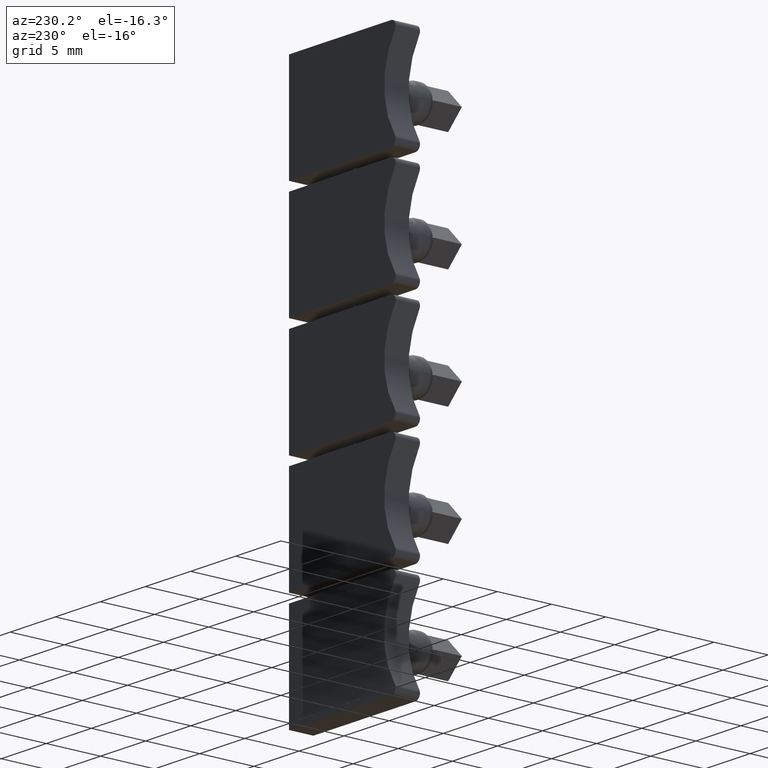
[diagram: clean part render]
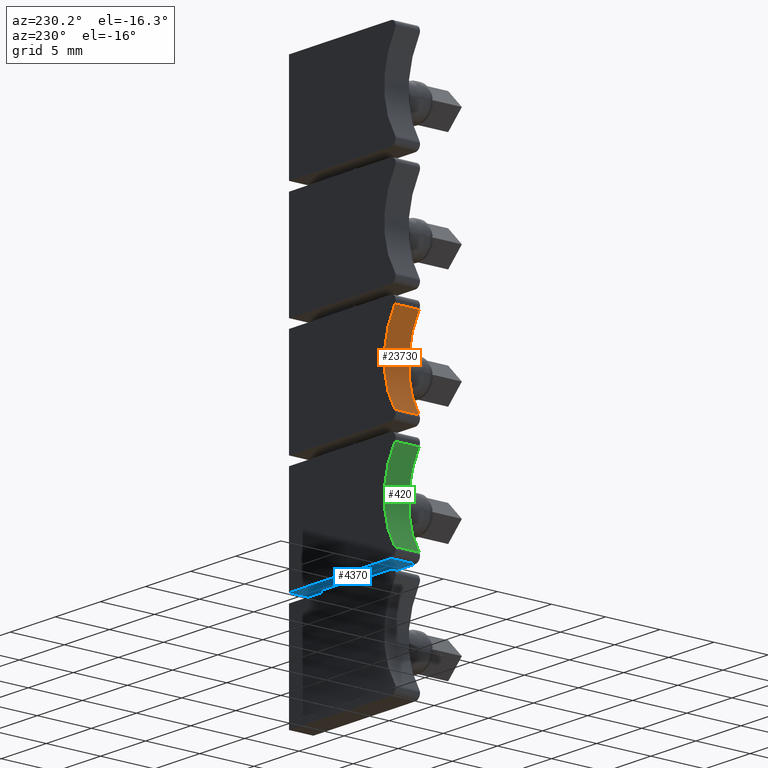
[diagram: same view with three faces highlighted in distinct colors, each labeled with its STEP entity id]
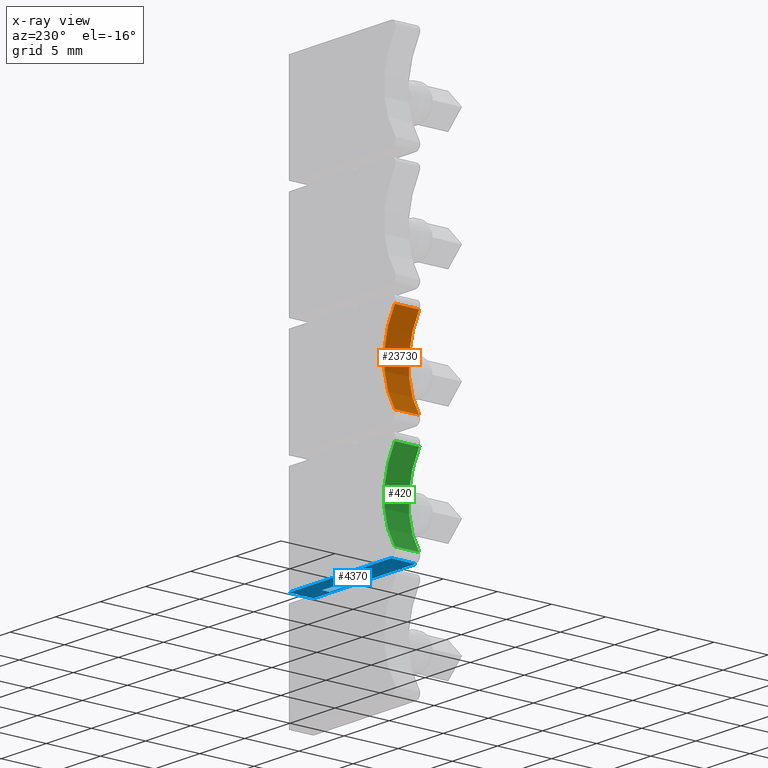
[diagram: x-ray of the same camera — body ghosted, the three highlighted faces saturated]
A machine part, auxiliary view with three faces highlighted in distinct colors.
The next image is the same camera in x-ray (body ghosted, the three faces saturated) — at least one of them is partly hidden behind the body in this view.
Their STEP definitions:

[orange] entity #23730 — the highlighted cylindrical surface (partial cylindrical patch) has radius 7 mm, axis along (0, 1, -0).
#23320=CARTESIAN_POINT('',(-24.7719648438414,35.7630743806125,35.45));
#23330=DIRECTION('',(4.37360856649983E-12,1.,0.));
#23340=DIRECTION('',(-1.,4.37360856649983E-12,0.));
#23350=AXIS2_PLACEMENT_3D('',#23320,#23330,#23340);
#23360=CYLINDRICAL_SURFACE('',#23350,6.99999999891299);
#23370=CARTESIAN_POINT('',(-18.9568131782551,35.7630743805871,
39.3466666640875));
#23380=DIRECTION('',(4.37360856649983E-12,1.,0.));
#23390=VECTOR('',#23380,1.);
#23400=LINE('',#23370,#23390);
#23410=CARTESIAN_POINT('',(-18.9568131782243,42.8120767804526,
39.3466666640875));
#23420=VERTEX_POINT('',#23410);
#23430=CARTESIAN_POINT('',(-18.9568131782144,45.0620767804526,
39.3466666640875));
#23440=VERTEX_POINT('',#23430);
#23450=EDGE_CURVE('',#23420,#23440,#23400,.T.);
#23460=ORIENTED_EDGE('',*,*,#23450,.T.);
#23470=CARTESIAN_POINT('',(-24.7719648438106,42.812076780478,35.45));
#23480=DIRECTION('',(4.37360856649983E-12,1.,0.));
#23490=DIRECTION('',(-1.,4.37360856649983E-12,0.));
#23500=AXIS2_PLACEMENT_3D('',#23470,#23480,#23490);
#23510=CIRCLE('',#23500,6.99999999891299);
#23520=CARTESIAN_POINT('',(-18.9568131816267,42.8120767804526,
31.5533333308349));
#23530=VERTEX_POINT('',#23520);
#23540=EDGE_CURVE('',#23420,#23530,#23510,.T.);
#23550=ORIENTED_EDGE('',*,*,#23540,.F.);
#23560=CARTESIAN_POINT('',(-18.9568131816576,35.7630743805871,
31.5533333308349));
#23570=DIRECTION('',(4.37360856649983E-12,1.,0.));
#23580=VECTOR('',#23570,1.);
#23590=LINE('',#23560,#23580);
#23600=CARTESIAN_POINT('',(-18.9568131816169,45.0620767804526,
31.5533333308349));
#23610=VERTEX_POINT('',#23600);
#23620=EDGE_CURVE('',#23530,#23610,#23590,.T.);
#23630=ORIENTED_EDGE('',*,*,#23620,.F.);
#23640=CARTESIAN_POINT('',(-24.7719648438007,45.062076780478,35.45));
#23650=DIRECTION('',(4.37360856649983E-12,1.,0.));
#23660=DIRECTION('',(-1.,4.37360856649983E-12,0.));
#23670=AXIS2_PLACEMENT_3D('',#23640,#23650,#23660);
#23680=CIRCLE('',#23670,6.99999999891299);
#23690=EDGE_CURVE('',#23440,#23610,#23680,.T.);
#23700=ORIENTED_EDGE('',*,*,#23690,.T.);
#23710=EDGE_LOOP('',(#23700,#23630,#23550,#23460));
#23720=FACE_OUTER_BOUND('',#23710,.T.);
#23730=ADVANCED_FACE('',(#23720),#23360,.F.);

[blue] entity #4370 — the highlighted planar face has unit normal (0, -0, -1).
#3640=CARTESIAN_POINT('',(-9.02416052900085,42.8120767804091,
20.6249999972799));
#3650=DIRECTION('',(0.,-0.,-1.));
#3660=DIRECTION('',(1.,-4.37360856649983E-12,0.));
#3670=AXIS2_PLACEMENT_3D('',#3640,#3650,#3660);
#3680=PLANE('',#3670);
#3690=CARTESIAN_POINT('',(-9.22161674200213,42.81207678041,
20.6249999972799));
#3700=DIRECTION('',(-4.37360856649983E-12,-1.,0.));
#3710=VECTOR('',#3700,1.);
#3720=LINE('',#3690,#3710);
#3730=CARTESIAN_POINT('',(-9.22161674199827,43.6954101153219,
20.6249999972799));
#3740=VERTEX_POINT('',#3730);
#3750=CARTESIAN_POINT('',(-9.2216167420014,42.9787434470685,
20.6249999972799));
#3760=VERTEX_POINT('',#3750);
#3770=EDGE_CURVE('',#3740,#3760,#3720,.T.);
#3780=ORIENTED_EDGE('',*,*,#3770,.F.);
#3790=CARTESIAN_POINT('',(-18.2837265971482,42.9787434471081,
20.6249999972799));
#3800=DIRECTION('',(1.,-4.37360856649983E-12,0.));
#3810=VECTOR('',#3800,1.);
#3820=LINE('',#3790,#3810);
#3830=CARTESIAN_POINT('',(-12.7216167420021,42.9787434470838,
20.6249999972799));
#3840=VERTEX_POINT('',#3830);
#3850=EDGE_CURVE('',#3840,#3760,#3820,.T.);
#3860=ORIENTED_EDGE('',*,*,#3850,.T.);
#3870=CARTESIAN_POINT('',(-12.7216167420029,42.8120767804253,
20.6249999972799));
#3880=DIRECTION('',(-4.37360856649983E-12,-1.,0.));
#3890=VECTOR('',#3880,1.);
#3900=LINE('',#3870,#3890);
#3910=CARTESIAN_POINT('',(-12.721616741999,43.6954101153372,
20.6249999972799));
#3920=VERTEX_POINT('',#3910);
#3930=EDGE_CURVE('',#3920,#3840,#3900,.T.);
#3940=ORIENTED_EDGE('',*,*,#3930,.T.);
#3950=CARTESIAN_POINT('',(-18.2837265971451,43.6954101153616,
20.6249999972799));
#3960=DIRECTION('',(-1.,4.37360856649983E-12,0.));
#3970=VECTOR('',#3960,1.);
#3980=LINE('',#3950,#3970);
#3990=EDGE_CURVE('',#3740,#3920,#3980,.T.);
#4000=ORIENTED_EDGE('',*,*,#3990,.T.);
#4010=EDGE_LOOP('',(#4000,#3940,#3860,#3780));
#4020=FACE_BOUND('',#4010,.T.);
#4030=CARTESIAN_POINT('',(-18.2837265971489,42.8120767804496,
20.6249999972799));
#4040=DIRECTION('',(1.,-4.37360856649983E-12,0.));
#4050=VECTOR('',#4040,1.);
#4060=LINE('',#4030,#4050);
#4070=CARTESIAN_POINT('',(-18.541445205692,42.8120767804508,
20.6249999972799));
#4080=VERTEX_POINT('',#4070);
#4090=CARTESIAN_POINT('',(-7.22161674200213,42.8120767804012,
20.6249999972799));
#4100=VERTEX_POINT('',#4090);
#4110=EDGE_CURVE('',#4080,#4100,#4060,.T.);
#4120=ORIENTED_EDGE('',*,*,#4110,.F.);
#4130=CARTESIAN_POINT('',(-7.22161674200213,42.8120767804012,
20.6249999972799));
#4140=DIRECTION('',(-4.37360856649983E-12,-1.,0.));
#4150=VECTOR('',#4140,1.);
#4160=LINE('',#4130,#4150);
#4170=CARTESIAN_POINT('',(-7.22161674199229,45.0620767804012,
20.6249999972799));
#4180=VERTEX_POINT('',#4170);
#4190=EDGE_CURVE('',#4180,#4100,#4160,.T.);
#4200=ORIENTED_EDGE('',*,*,#4190,.T.);
#4210=CARTESIAN_POINT('',(-18.2837265971391,45.0620767804496,
20.6249999972799));
#4220=DIRECTION('',(-1.,4.37360856649983E-12,0.));
#4230=VECTOR('',#4220,1.);
#4240=LINE('',#4210,#4230);
#4250=CARTESIAN_POINT('',(-18.5414452056821,45.0620767804508,
20.6249999972799));
#4260=VERTEX_POINT('',#4250);
#4270=EDGE_CURVE('',#4180,#4260,#4240,.T.);
#4280=ORIENTED_EDGE('',*,*,#4270,.F.);
#4290=CARTESIAN_POINT('',(-18.5414452057228,35.7630743805853,
20.6249999972799));
#4300=DIRECTION('',(4.37360856649983E-12,1.,0.));
#4310=VECTOR('',#4300,1.);
#4320=LINE('',#4290,#4310);
#4330=EDGE_CURVE('',#4080,#4260,#4320,.T.);
#4340=ORIENTED_EDGE('',*,*,#4330,.T.);
#4350=EDGE_LOOP('',(#4340,#4280,#4200,#4120));
#4360=FACE_OUTER_BOUND('',#4350,.T.);
#4370=ADVANCED_FACE('',(#4020,#4360),#3680,.T.);

[green] entity #420 — the highlighted cylindrical surface (partial cylindrical patch) has radius 7 mm, axis along (0, 1, -0).
#10=CARTESIAN_POINT('',(-24.7719648438414,35.7630743806125,25.3));
#20=DIRECTION('',(4.37360856649983E-12,1.,0.));
#30=DIRECTION('',(-1.,4.37360856649983E-12,0.));
#40=AXIS2_PLACEMENT_3D('',#10,#20,#30);
#50=CYLINDRICAL_SURFACE('',#40,6.99999999891299);
#60=CARTESIAN_POINT('',(-18.9568131782551,35.7630743805871,
29.1966666640875));
#70=DIRECTION('',(4.37360856649983E-12,1.,0.));
#80=VECTOR('',#70,1.);
#90=LINE('',#60,#80);
#100=CARTESIAN_POINT('',(-18.9568131782243,42.8120767804526,
29.1966666640875));
#110=VERTEX_POINT('',#100);
#120=CARTESIAN_POINT('',(-18.9568131782144,45.0620767804526,
29.1966666640875));
#130=VERTEX_POINT('',#120);
#140=EDGE_CURVE('',#110,#130,#90,.T.);
#150=ORIENTED_EDGE('',*,*,#140,.T.);
#160=CARTESIAN_POINT('',(-24.7719648438106,42.812076780478,25.3));
#170=DIRECTION('',(4.37360856649983E-12,1.,0.));
#180=DIRECTION('',(-1.,4.37360856649983E-12,0.));
#190=AXIS2_PLACEMENT_3D('',#160,#170,#180);
#200=CIRCLE('',#190,6.99999999891299);
#210=CARTESIAN_POINT('',(-18.9568131816267,42.8120767804526,
21.4033333308349));
#220=VERTEX_POINT('',#210);
#230=EDGE_CURVE('',#110,#220,#200,.T.);
#240=ORIENTED_EDGE('',*,*,#230,.F.);
#250=CARTESIAN_POINT('',(-18.9568131816576,35.7630743805871,
21.4033333308349));
#260=DIRECTION('',(4.37360856649983E-12,1.,0.));
#270=VECTOR('',#260,1.);
#280=LINE('',#250,#270);
#290=CARTESIAN_POINT('',(-18.9568131816169,45.0620767804526,
21.4033333308349));
#300=VERTEX_POINT('',#290);
#310=EDGE_CURVE('',#220,#300,#280,.T.);
#320=ORIENTED_EDGE('',*,*,#310,.F.);
#330=CARTESIAN_POINT('',(-24.7719648438007,45.062076780478,25.3));
#340=DIRECTION('',(4.37360856649983E-12,1.,0.));
#350=DIRECTION('',(-1.,4.37360856649983E-12,0.));
#360=AXIS2_PLACEMENT_3D('',#330,#340,#350);
#370=CIRCLE('',#360,6.99999999891299);
#380=EDGE_CURVE('',#130,#300,#370,.T.);
#390=ORIENTED_EDGE('',*,*,#380,.T.);
#400=EDGE_LOOP('',(#390,#320,#240,#150));
#410=FACE_OUTER_BOUND('',#400,.T.);
#420=ADVANCED_FACE('',(#410),#50,.F.);